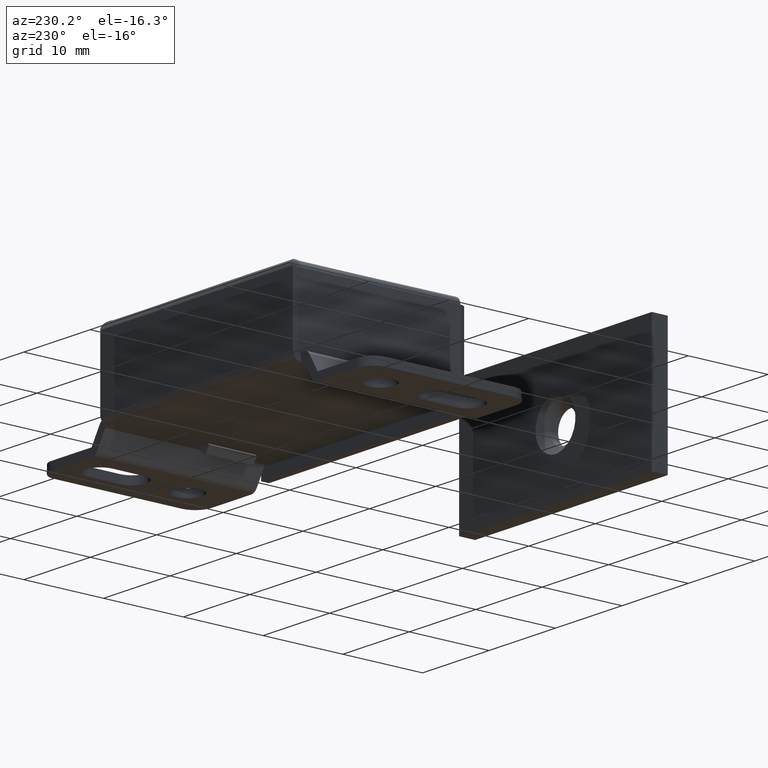
[diagram: clean part render]
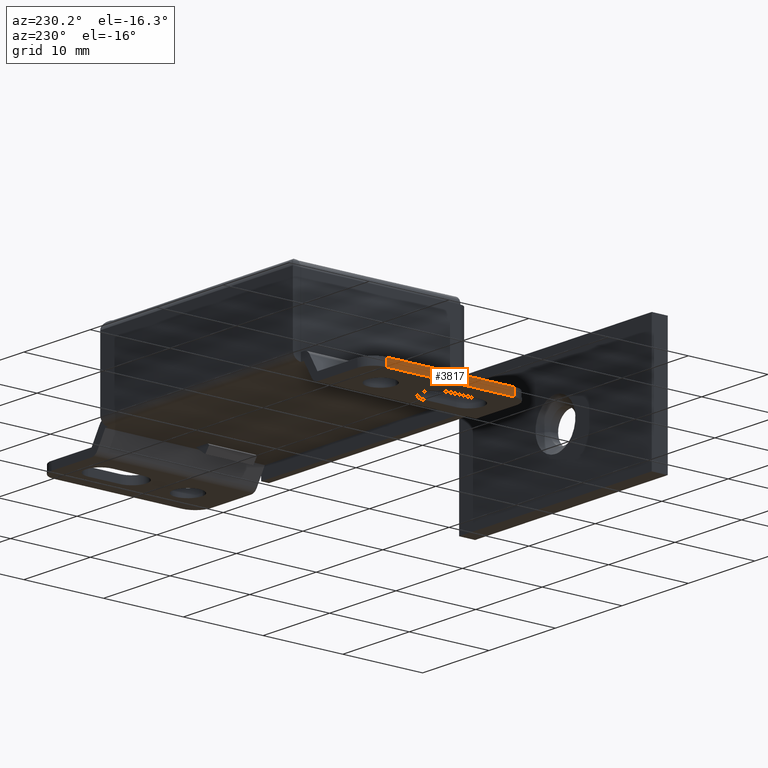
[diagram: same view with one face highlighted and labeled with its STEP entity id]
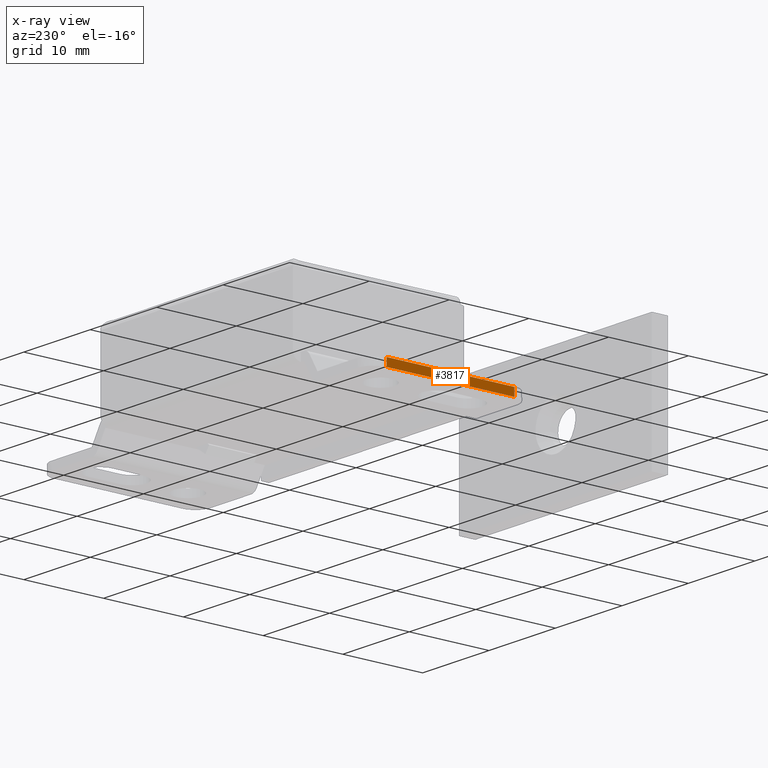
[diagram: x-ray of the same camera — body ghosted, the highlighted face saturated]
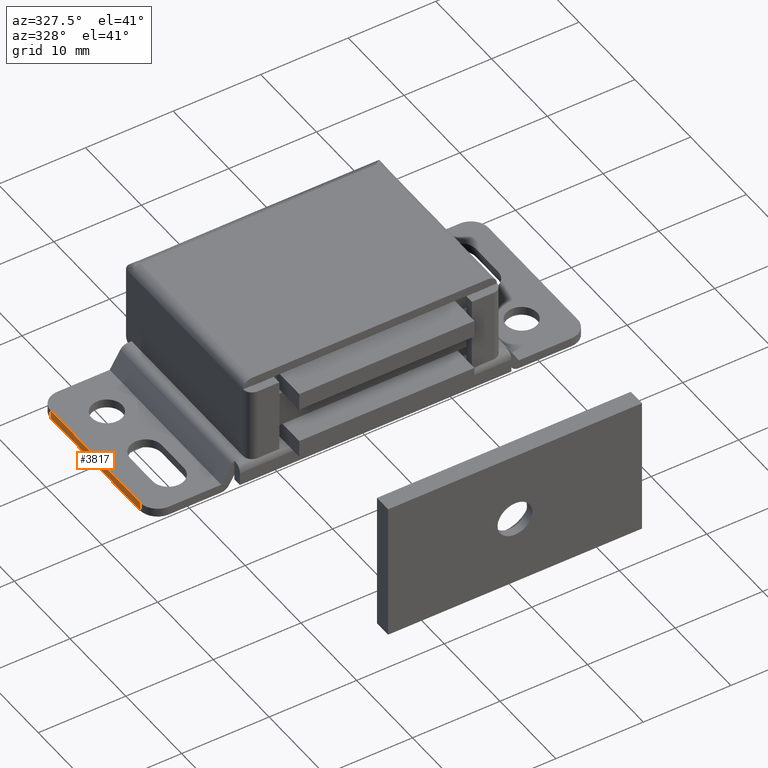
[diagram: same view with one face highlighted and labeled with its STEP entity id]
A machine part, auxiliary view. The second image highlights one B-rep face of the part: STEP entity #3817.
The next image is the same camera in x-ray: the body ghosted, the highlighted face saturated — about 0% of this face is hidden behind the body in this view.
A second angle (auxiliary view) of the same face is appended — the face is thin or edge-on in the first view.
In plain terms, the highlighted face is a freeform B-spline surface patch.
Its self-contained STEP definition (entity closure, byte-faithful):
#2349=CARTESIAN_POINT('',(-25.0,-3.0,0.0));
#2350=VERTEX_POINT('',#2349);
#2366=CARTESIAN_POINT('',(-25.0,-3.0,1.0));
#2367=VERTEX_POINT('',#2366);
#2368=CARTESIAN_POINT('',(-25.0,-3.0,1.0));
#2369=CARTESIAN_POINT('',(-25.0,-3.0,0.0));
#2370=QUASI_UNIFORM_CURVE('',1,(#2368,#2369),.UNSPECIFIED.,.F.,.U.);
#2371=EDGE_CURVE('',#2367,#2350,#2370,.T.);
#2412=CARTESIAN_POINT('',(-25.0,-19.0,0.0));
#2413=VERTEX_POINT('',#2412);
#2434=CARTESIAN_POINT('',(-25.0,-19.0,1.0));
#2435=VERTEX_POINT('',#2434);
#2449=CARTESIAN_POINT('',(-25.0,-19.0,0.0));
#2450=CARTESIAN_POINT('',(-25.0,-19.0,1.0));
#2451=QUASI_UNIFORM_CURVE('',1,(#2449,#2450),.UNSPECIFIED.,.F.,.U.);
#2452=EDGE_CURVE('',#2413,#2435,#2451,.T.);
#3798=CARTESIAN_POINT('',(-25.0,-19.799199968988901,-0.049949998061806));
#3799=CARTESIAN_POINT('',(-25.0,-19.799199968988901,1.049950024883896));
#3800=CARTESIAN_POINT('',(-25.0,-2.200799601857663,-0.049949998061806));
#3801=CARTESIAN_POINT('',(-25.0,-2.200799601857663,1.049950024883896));
#3802=B_SPLINE_SURFACE_WITH_KNOTS('',1,1,((#3798,#3800),(#3799,#3801)),.UNSPECIFIED.,.F.,.F.,.U.,(2,2),(2,2),(0.041708334948495,0.958291687403247),(0.0,17.598400367131230),.UNSPECIFIED.);
#3803=CARTESIAN_POINT('',(-25.0,-19.0,0.0));
#3804=CARTESIAN_POINT('',(-25.0,-3.0,0.0));
#3805=QUASI_UNIFORM_CURVE('',1,(#3803,#3804),.UNSPECIFIED.,.F.,.U.);
#3806=EDGE_CURVE('',#2413,#2350,#3805,.T.);
#3807=ORIENTED_EDGE('',*,*,#3806,.F.);
#3808=ORIENTED_EDGE('',*,*,#2452,.T.);
#3809=CARTESIAN_POINT('',(-25.0,-19.0,1.0));
#3810=CARTESIAN_POINT('',(-25.0,-3.0,1.0));
#3811=QUASI_UNIFORM_CURVE('',1,(#3809,#3810),.UNSPECIFIED.,.F.,.U.);
#3812=EDGE_CURVE('',#2435,#2367,#3811,.T.);
#3813=ORIENTED_EDGE('',*,*,#3812,.T.);
#3814=ORIENTED_EDGE('',*,*,#2371,.T.);
#3815=EDGE_LOOP('',(#3807,#3808,#3813,#3814));
#3816=FACE_OUTER_BOUND('',#3815,.T.);
#3817=ADVANCED_FACE('',(#3816),#3802,.T.);